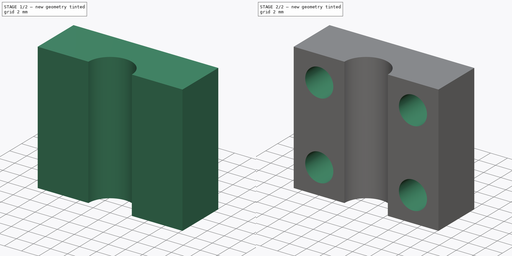
[diagram: build sequence overview — one tinted view per stage of 2, left to right]
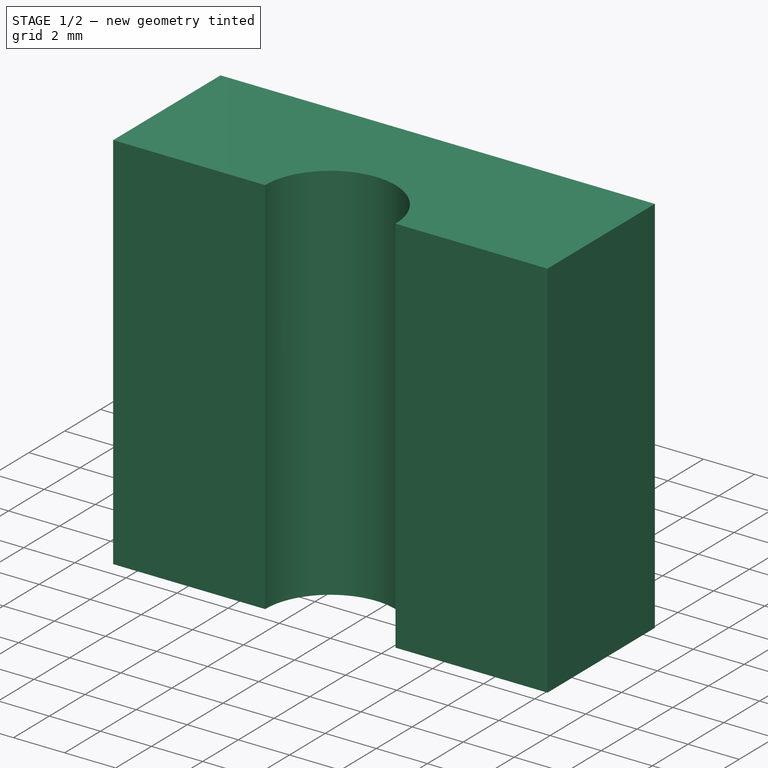
[diagram: stage 1 of 2 — iso view after this stage's code; geometry added in this stage tinted green]
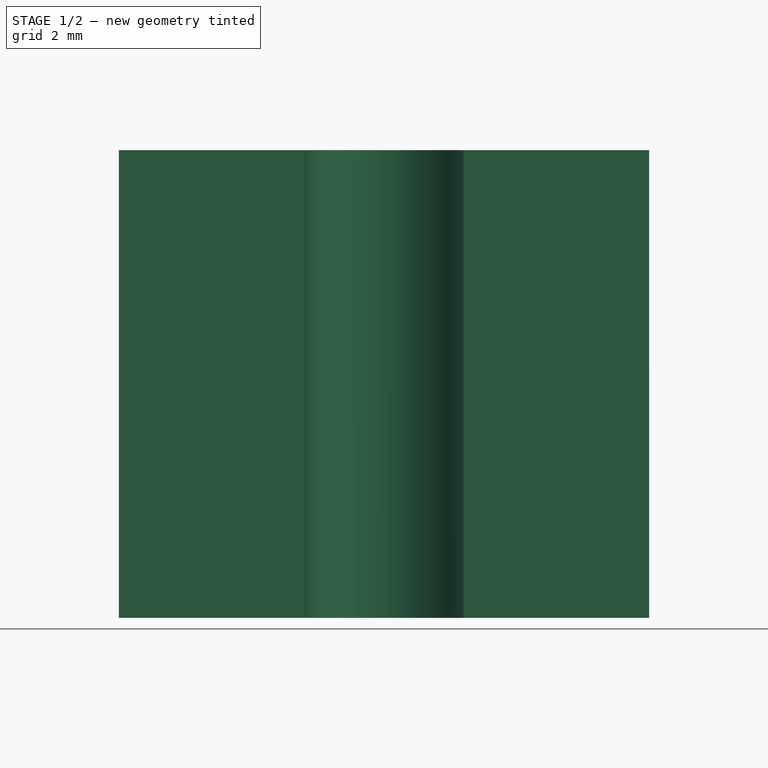
[diagram: stage 1 of 2 — front view after this stage's code; geometry added in this stage tinted green]
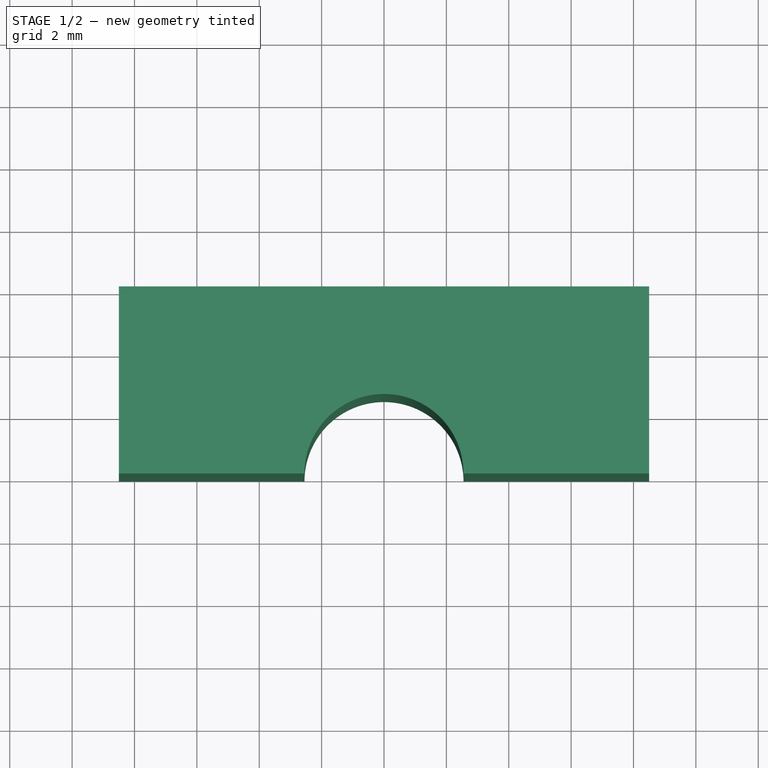
[diagram: stage 1 of 2 — top view after this stage's code; geometry added in this stage tinted green]
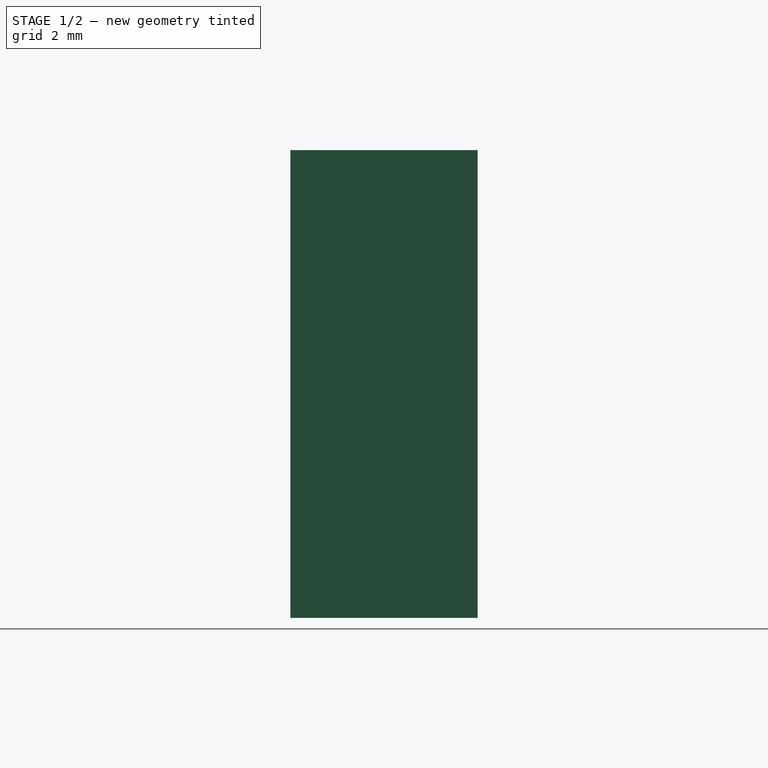
[diagram: stage 1 of 2 — right view after this stage's code; geometry added in this stage tinted green]
FCSTD DOCUMENT  (FreeCAD 0.18R14090 (Git))
Label: ZThreadedRodCoupler
License: All rights reserved
LicenseURL: http://en.wikipedia.org/wiki/All_rights_reserved
objects: Sketcher::SketchObject×2, PartDesign::Pad×1, PartDesign::Pocket×1, PartDesign::Body×1, App::Part×1
note: 7 computed .brp shape members not serialized (recipe doc carries the construction recipe); baked Part::Feature solids carry a one-line shape summary decoded from their .brp

FEATURE [Sketcher::SketchObject] Sketch  label="BaseSketch"
  MapMode = 5
  Support = -> [XY_Plane001]
  sketch-geometry (6):
    g0: ArcOfCircle CenterX=0 CenterY=0 CenterZ=0 NormalX=0 NormalY=0 NormalZ=1 AngleXU=0 Radius=2.55 StartAngle=0 EndAngle=3.14159
    g1: LineSegment StartX=-2.55 StartY=0 StartZ=0 EndX=-8.5 EndY=0 EndZ=0
    g2: LineSegment StartX=2.55 StartY=0 StartZ=0 EndX=8.5 EndY=0 EndZ=0
    g3: LineSegment StartX=-8.5 StartY=0 StartZ=0 EndX=-8.5 EndY=6 EndZ=0
    g4: LineSegment StartX=-8.5 StartY=6 StartZ=0 EndX=8.5 EndY=6 EndZ=0
    g5: LineSegment StartX=8.5 StartY=6 StartZ=0 EndX=8.5 EndY=0 EndZ=0
  constraints (18):
    c: Coincident(g0,g-1)
    c: PointOnObject(g0,g-1)
    c: PointOnObject(g0,g-1)
    c: Coincident(g1,g0)
    c: PointOnObject(g1,g-1)
    c: Coincident(g2,g0)
    c: PointOnObject(g2,g-1)
    c: Coincident(g3,g1)
    c: Vertical(g3)
    c: Coincident(g4,g3)
    c: Horizontal(g4)
    c: Coincident(g5,g4)
    c: Coincident(g5,g2)
    c: Vertical(g5)
    c: Equal(g1,g2)
    c: Radius(g0) = 2.55
    c: Distance(g1,g2) = 17
    c: Distance(g3) = 6
FEATURE [PartDesign::Pad] Pad  label="BasePad"
  Length = 15
  Length2 = 100
  Profile = -> Sketch
  Type = 0
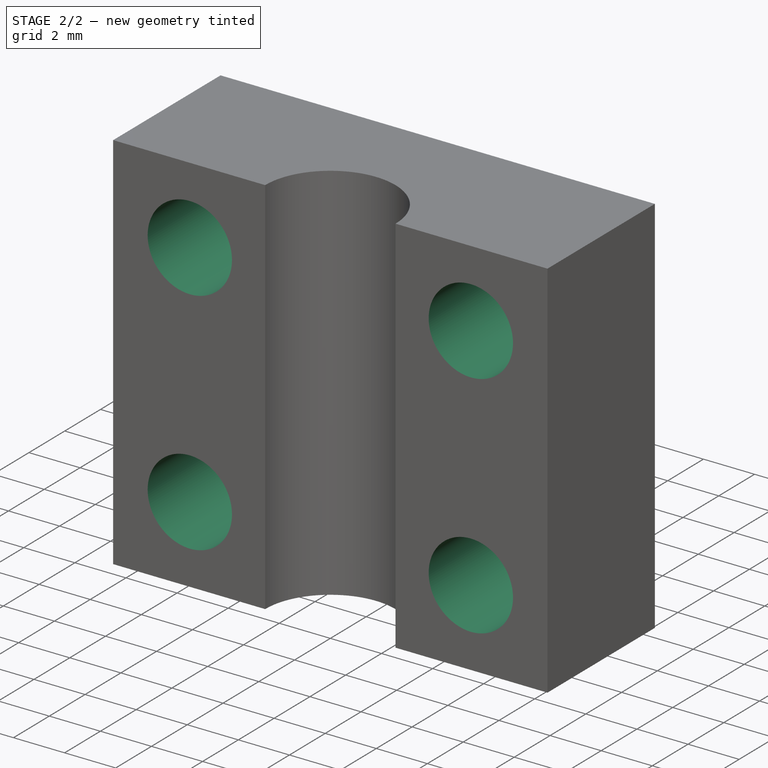
[diagram: stage 2 of 2 — iso view after this stage's code; geometry added in this stage tinted green]
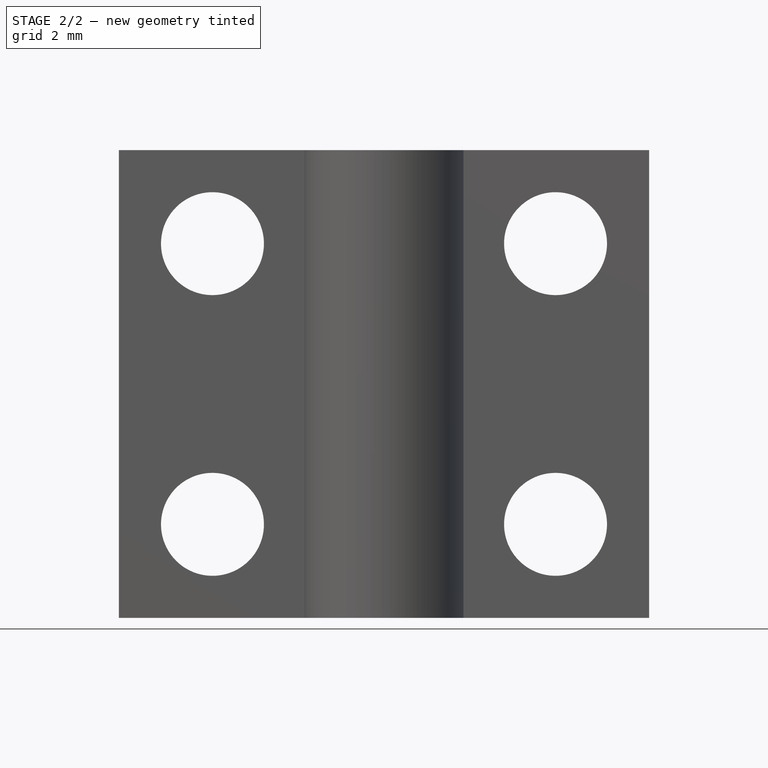
[diagram: stage 2 of 2 — front view after this stage's code; geometry added in this stage tinted green]
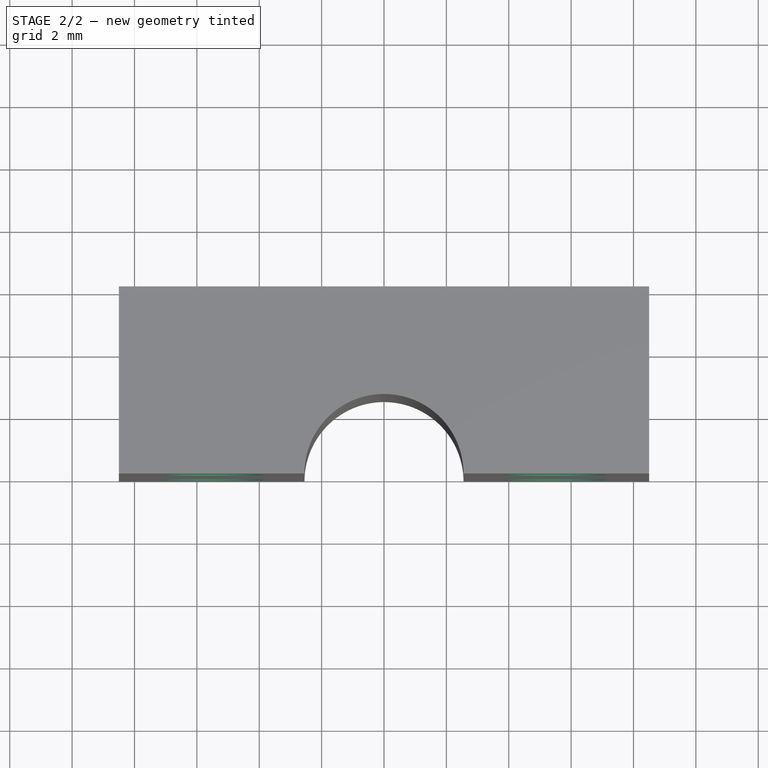
[diagram: stage 2 of 2 — top view after this stage's code; geometry added in this stage tinted green]
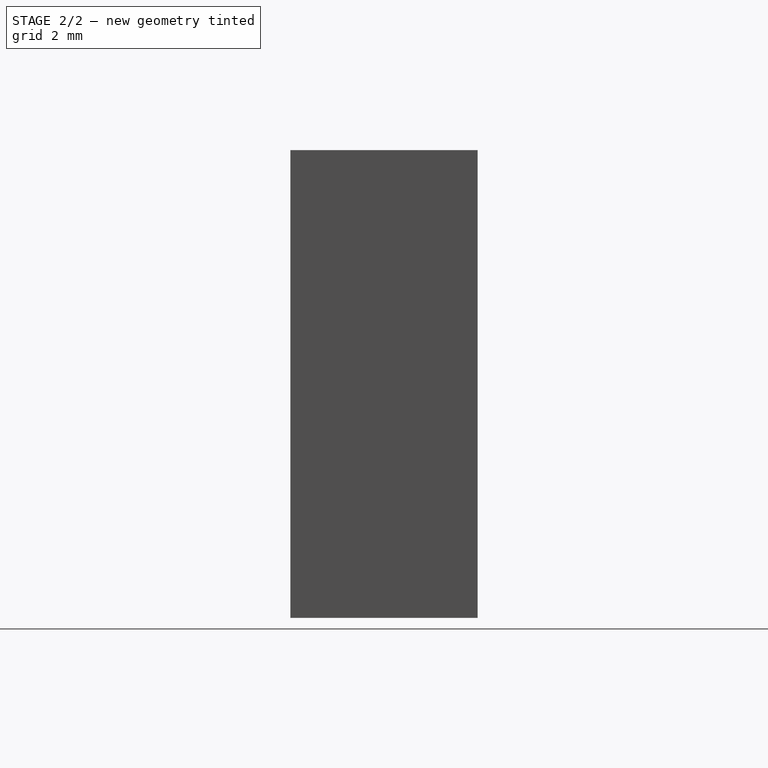
[diagram: stage 2 of 2 — right view after this stage's code; geometry added in this stage tinted green]
FEATURE [Sketcher::SketchObject] Sketch001  label="ScrewHolesSketch"
  MapMode = 5
  Placement = pos=(0,0,0) rot=(1,0,0;1.5708rad)
  Support = -> [XZ_Plane001]
  sketch-geometry (6):
    g0: Circle CenterX=-5.5 CenterY=3 CenterZ=0 NormalX=0 NormalY=0 NormalZ=1 AngleXU=0 Radius=1.65
    g1: Circle CenterX=-5.5 CenterY=12 CenterZ=0 NormalX=0 NormalY=0 NormalZ=1 AngleXU=0 Radius=1.65
    g2: Circle CenterX=5.5 CenterY=12 CenterZ=0 NormalX=0 NormalY=0 NormalZ=1 AngleXU=0 Radius=1.65
    g3: Circle CenterX=5.5 CenterY=3 CenterZ=0 NormalX=0 NormalY=0 NormalZ=1 AngleXU=0 Radius=1.65
    g4: LineSegment [constr] StartX=-5.5 StartY=12 StartZ=0 EndX=5.5 EndY=12 EndZ=0
    g5: LineSegment [constr] StartX=-5.5 StartY=3 StartZ=0 EndX=5.5 EndY=3 EndZ=0
  constraints (14):
    c: Symmetric(g0,g3,g-2)
    c: Symmetric(g2,g1,g-2)
    c: Coincident(g4,g1)
    c: Coincident(g4,g2)
    c: Coincident(g5,g0)
    c: Coincident(g5,g3)
    c: Equal(g4,g5)
    c: Equal(g2,g3)
    c: Equal(g3,g0)
    c: Equal(g0,g1)
    c: Radius(g1) = 1.65
    c: Distance(g5) = 11
    c: DistanceY(g-1,g0) = 3
    c: Distance(g0,g1) = 9
FEATURE [PartDesign::Pocket] Pocket  label="ScrewHolesPocket"
  BaseFeature = -> Pad
  Length = 5
  Length2 = 100
  Profile = -> Sketch001
  Type = 1
FEATURE [PartDesign::Body] Body  label="CouplerBody"
  Group = -> [Sketch,Pad,Sketch001,Pocket]
  Origin = -> Origin001
  Tip = -> Pocket
FEATURE [App::Part] Part  label="CouplerPart"
  Group = -> [Body]
  License = CC BY 3.0
  LicenseURL = http://creativecommons.org/licenses/by/3.0/
  Origin = -> Origin
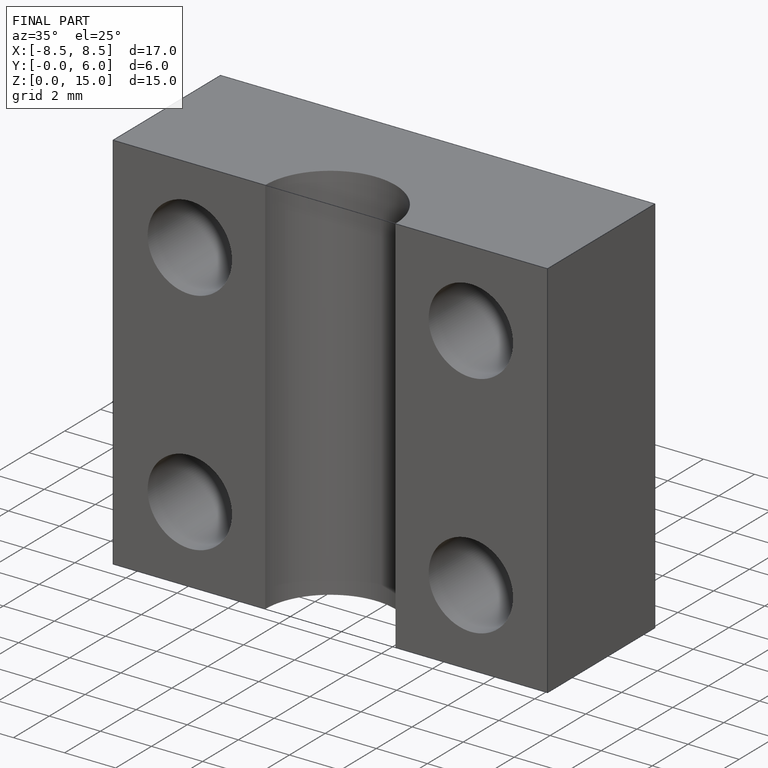
[diagram: finished part — iso view with bounding-box wireframe]
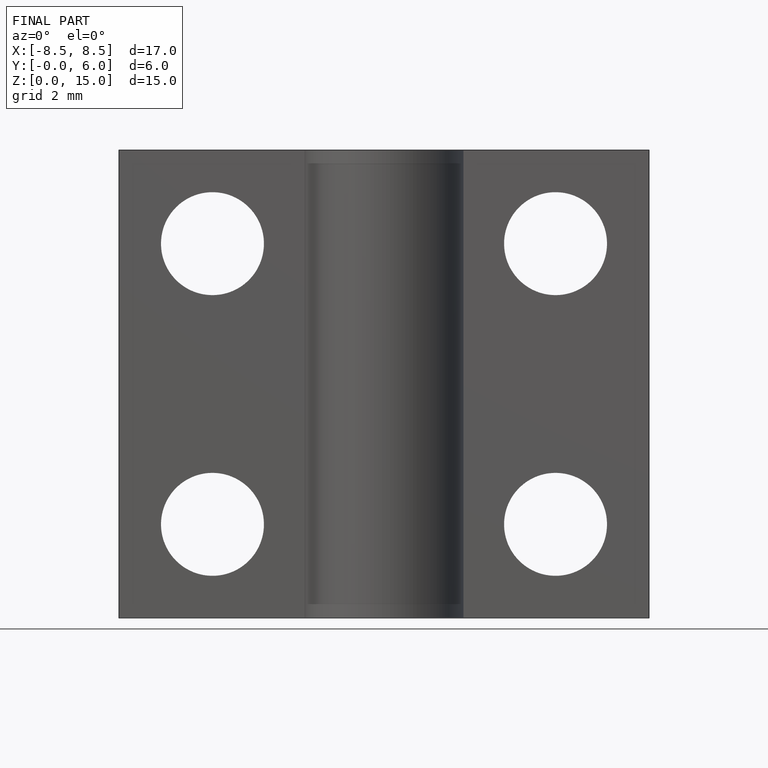
[diagram: finished part — front view with bounding-box wireframe]
